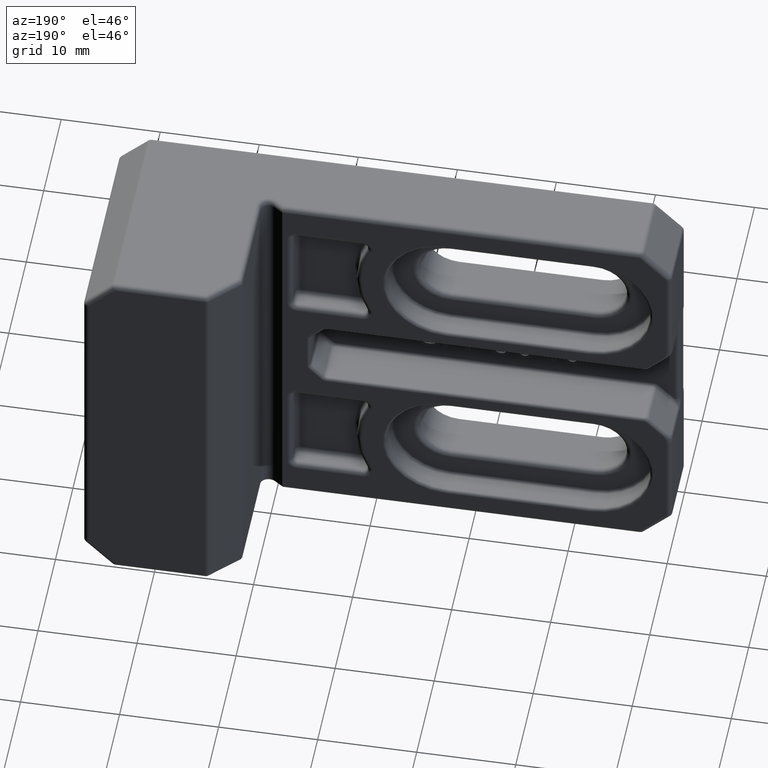
[diagram: clean part render]
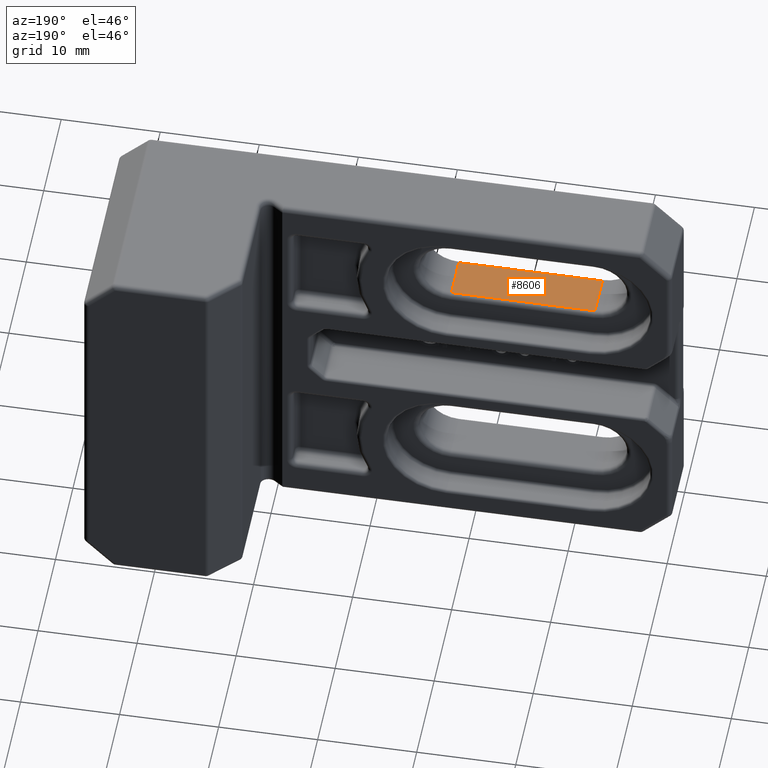
[diagram: same view with one face highlighted and labeled with its STEP entity id]
A machine part, auxiliary view. The second image highlights one B-rep face of the part: STEP entity #8606.
In plain terms, the highlighted planar face has unit normal (0, 0, -1).
Its self-contained STEP definition (entity closure, byte-faithful):
#142=PLANE('',#9197);
#388=LINE('',#13809,#1102);
#392=LINE('',#13830,#1106);
#394=LINE('',#13836,#1108);
#395=LINE('',#13837,#1109);
#1102=VECTOR('',#10215,14.499999319334);
#1106=VECTOR('',#10241,4.2);
#1108=VECTOR('',#10247,4.2);
#1109=VECTOR('',#10248,14.499999319334);
#2025=FACE_OUTER_BOUND('',#2579,.T.);
#2579=EDGE_LOOP('',(#5975,#5976,#5977,#5978));
#3774=VERTEX_POINT('',#13806);
#3775=VERTEX_POINT('',#13808);
#3781=VERTEX_POINT('',#13829);
#3783=VERTEX_POINT('',#13835);
#4598=EDGE_CURVE('',#3774,#3775,#388,.T.);
#4609=EDGE_CURVE('',#3781,#3775,#392,.T.);
#4612=EDGE_CURVE('',#3783,#3774,#394,.T.);
#4613=EDGE_CURVE('',#3781,#3783,#395,.T.);
#5975=ORIENTED_EDGE('',*,*,#4598,.F.);
#5976=ORIENTED_EDGE('',*,*,#4612,.F.);
#5977=ORIENTED_EDGE('',*,*,#4613,.F.);
#5978=ORIENTED_EDGE('',*,*,#4609,.T.);
#8606=ADVANCED_FACE('',(#2025),#142,.F.);
#9197=AXIS2_PLACEMENT_3D('',#13834,#10245,#10246);
#10215=DIRECTION('',(-1.,-1.83697019872103E-16,-4.59402652444877E-16));
#10241=DIRECTION('',(0.,-1.,0.));
#10245=DIRECTION('center_axis',(4.59402652444877E-16,0.,-1.));
#10246=DIRECTION('ref_axis',(-1.,0.,-8.88178419700125E-16));
#10247=DIRECTION('',(0.,-1.,0.));
#10248=DIRECTION('',(1.,5.35047240783208E-17,4.59402652444877E-16));
#13806=CARTESIAN_POINT('',(22.7499994530631,0.300000000000004,7.99999999966207));
#13808=CARTESIAN_POINT('',(8.25000013372915,0.300000000000001,7.99999999966207));
#13809=CARTESIAN_POINT('',(39.8749997265316,0.300000000000007,7.99999999966208));
#13829=CARTESIAN_POINT('',(8.25000013372915,4.5,7.99999999966207));
#13830=CARTESIAN_POINT('',(8.25000013372915,7.5,7.99999999966207));
#13834=CARTESIAN_POINT('Origin',(22.7499994530631,7.5,7.99999999966207));
#13835=CARTESIAN_POINT('',(22.7499994530631,4.5,7.99999999966207));
#13836=CARTESIAN_POINT('',(22.7499994530631,7.5,7.99999999966207));
#13837=CARTESIAN_POINT('',(19.1249997265316,4.5,7.99999999966207));